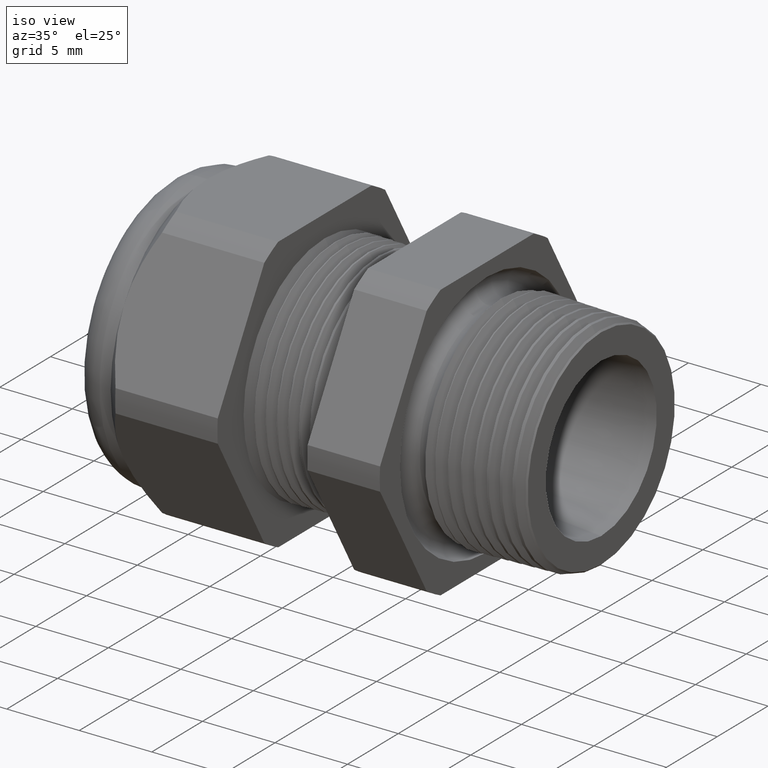
[diagram: clean part render]
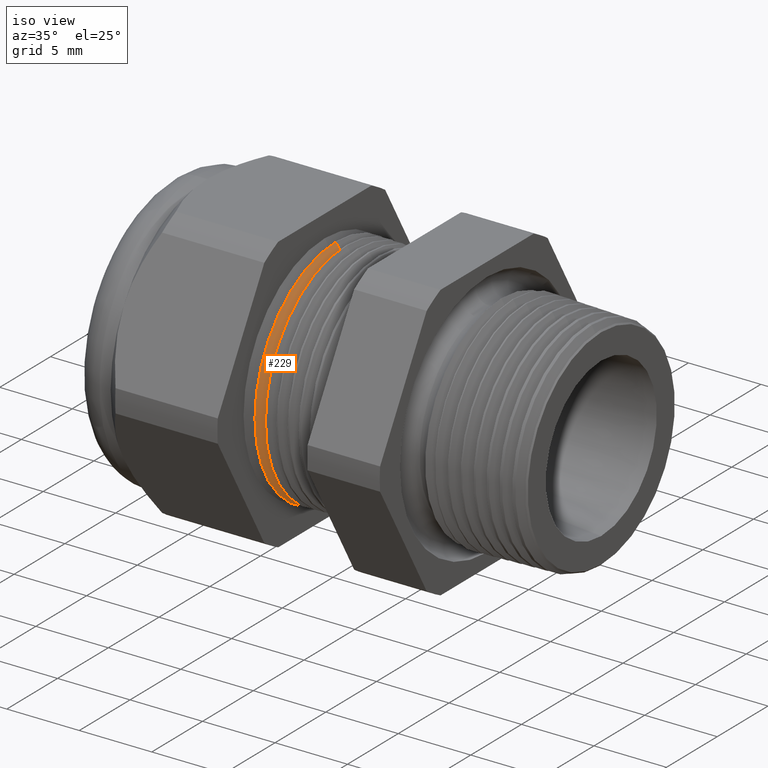
[diagram: same view with one face highlighted and labeled with its STEP entity id]
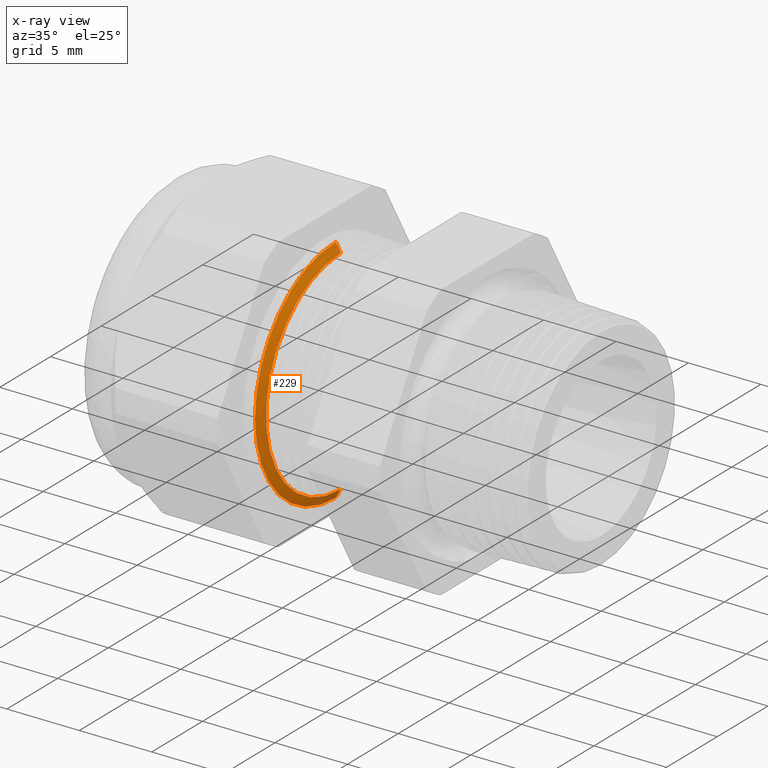
[diagram: x-ray of the same camera — body ghosted, the highlighted face saturated]
A machine part, iso view. The second image highlights one B-rep face of the part: STEP entity #229.
The next image is the same camera in x-ray: the body ghosted, the highlighted face saturated — about 5% of this face is hidden behind the body in this view.
In plain terms, the highlighted conical surface has half-angle 61.5 deg.
Its self-contained STEP definition (entity closure, byte-faithful):
#229 = ADVANCED_FACE ( 'NONE', ( #1462 ), #1457, .T. ) ;
#230 = EDGE_LOOP ( 'NONE', ( #231, #232, #234, #235 ) ) ;
#231 = ORIENTED_EDGE ( 'NONE', *, *, #972, .F. ) ;
#232 = ORIENTED_EDGE ( 'NONE', *, *, #233, .F. ) ;
#233 = EDGE_CURVE ( 'NONE', #973, #1004, #1451, .T. ) ;
#234 = ORIENTED_EDGE ( 'NONE', *, *, #980, .T. ) ;
#235 = ORIENTED_EDGE ( 'NONE', *, *, #4016, .T. ) ;
#972 = EDGE_CURVE ( 'NONE', #1004, #1041, #2753, .T. ) ;
#973 = VERTEX_POINT ( 'NONE', #2749 ) ;
#980 = EDGE_CURVE ( 'NONE', #973, #1005, #2802, .T. ) ;
#1004 = VERTEX_POINT ( 'NONE', #2814 ) ;
#1005 = VERTEX_POINT ( 'NONE', #2813 ) ;
#1041 = VERTEX_POINT ( 'NONE', #2878 ) ;
#1450 = AXIS2_PLACEMENT_3D ( 'NONE', #1456, #1512, #1511 ) ;
#1451 = CIRCLE ( 'NONE', #1450, 0.2896307351718083200 ) ;
#1452 = DIRECTION ( 'NONE',  ( 0.0000000000000000000, 0.0000000000000000000, 1.000000000000000000 ) ) ;
#1453 = DIRECTION ( 'NONE',  ( -1.000000000000000000, 0.0000000000000000000, 0.0000000000000000000 ) ) ;
#1454 = CARTESIAN_POINT ( 'NONE',  ( -0.7208661417322834700, 0.0000000000000000000, 0.0000000000000000000 ) ) ;
#1455 = AXIS2_PLACEMENT_3D ( 'NONE', #1454, #1453, #1452 ) ;
#1456 = CARTESIAN_POINT ( 'NONE',  ( -0.7070917547981794300, 0.0000000000000000000, 0.0000000000000000000 ) ) ;
#1457 = CONICAL_SURFACE ( 'NONE', #1455, 0.3150000000000000000, 1.073377489976500100 ) ;
#1462 = FACE_OUTER_BOUND ( 'NONE', #230, .T. ) ;
#1511 = DIRECTION ( 'NONE',  ( 0.0000000000000000000, 0.0000000000000000000, -1.000000000000000000 ) ) ;
#1512 = DIRECTION ( 'NONE',  ( 1.000000000000000000, 0.0000000000000000000, 0.0000000000000000000 ) ) ;
#2749 = CARTESIAN_POINT ( 'NONE',  ( -0.7070917547981794300, 0.0000000000000000000, 0.2896307351718083200 ) ) ;
#2750 = DIRECTION ( 'NONE',  ( -0.4771587602596195100, 1.076240564057387400E-016, -0.8788171126619593900 ) ) ;
#2751 = VECTOR ( 'NONE', #2750, 39.37007874015748100 ) ;
#2752 = CARTESIAN_POINT ( 'NONE',  ( -0.7208661417322834700, 3.857637417314162700E-017, -0.3150000000000000000 ) ) ;
#2753 = LINE ( 'NONE', #2752, #2751 ) ;
#2795 = DIRECTION ( 'NONE',  ( -0.4771587602596195100, 0.0000000000000000000, 0.8788171126619593900 ) ) ;
#2796 = VECTOR ( 'NONE', #2795, 39.37007874015748100 ) ;
#2797 = CARTESIAN_POINT ( 'NONE',  ( -0.7208661417322834700, 0.0000000000000000000, 0.3150000000000000000 ) ) ;
#2802 = LINE ( 'NONE', #2797, #2796 ) ;
#2813 = CARTESIAN_POINT ( 'NONE',  ( -0.7204334560345875300, 0.0000000000000000000, 0.3142030920791806200 ) ) ;
#2814 = CARTESIAN_POINT ( 'NONE',  ( -0.7070917547981794300, 3.697415818799097200E-017, -0.2896307351718083200 ) ) ;
#2878 = CARTESIAN_POINT ( 'NONE',  ( -0.7204334560345875300, 3.848130659775144900E-017, -0.3142030920791806200 ) ) ;
#3474 = DIRECTION ( 'NONE',  ( 0.0000000000000000000, 0.0000000000000000000, 1.000000000000000000 ) ) ;
#3475 = DIRECTION ( 'NONE',  ( 1.000000000000000000, 0.0000000000000000000, 0.0000000000000000000 ) ) ;
#3476 = CARTESIAN_POINT ( 'NONE',  ( -0.7204334560345875300, 0.0000000000000000000, 0.0000000000000000000 ) ) ;
#3477 = AXIS2_PLACEMENT_3D ( 'NONE', #3476, #3475, #3474 ) ;
#3478 = CIRCLE ( 'NONE', #3477, 0.3142030920791806200 ) ;
#4016 = EDGE_CURVE ( 'NONE', #1005, #1041, #3478, .T. ) ;